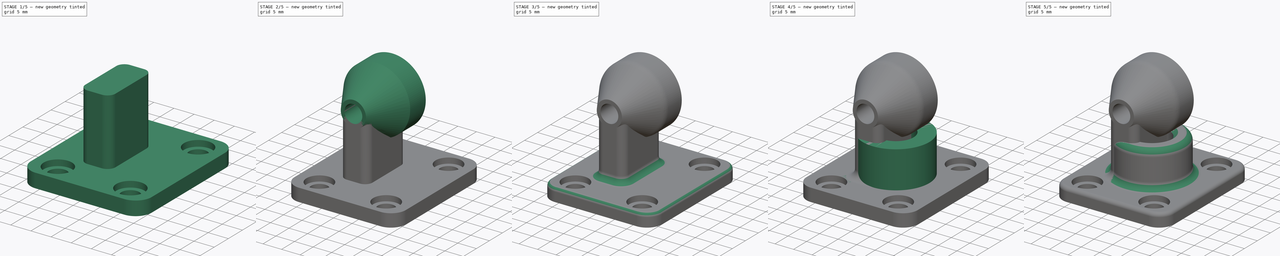
[diagram: build sequence overview — one tinted view per stage of 5, left to right]
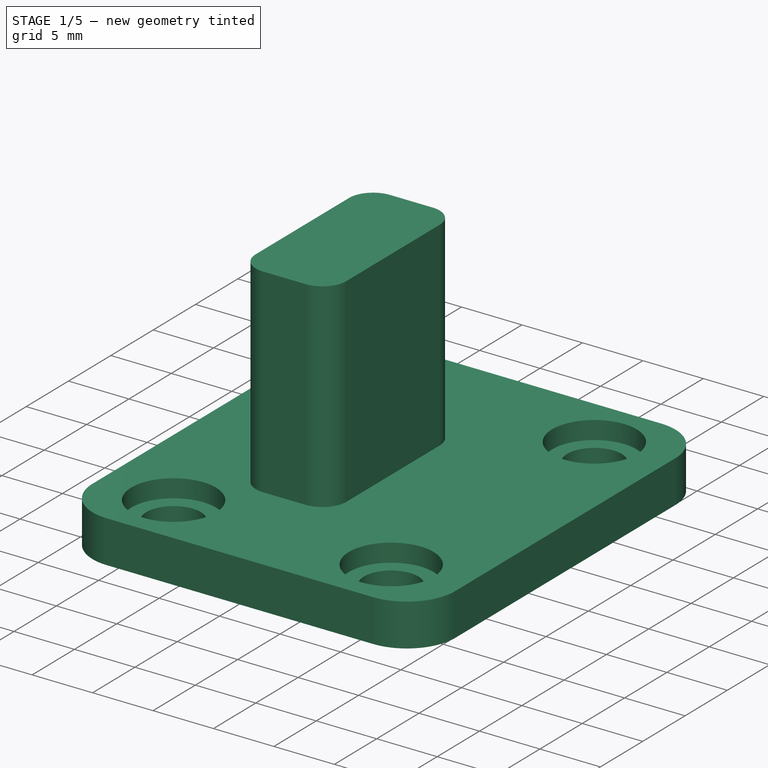
[diagram: stage 1 of 5 — iso view after this stage's code; geometry added in this stage tinted green]
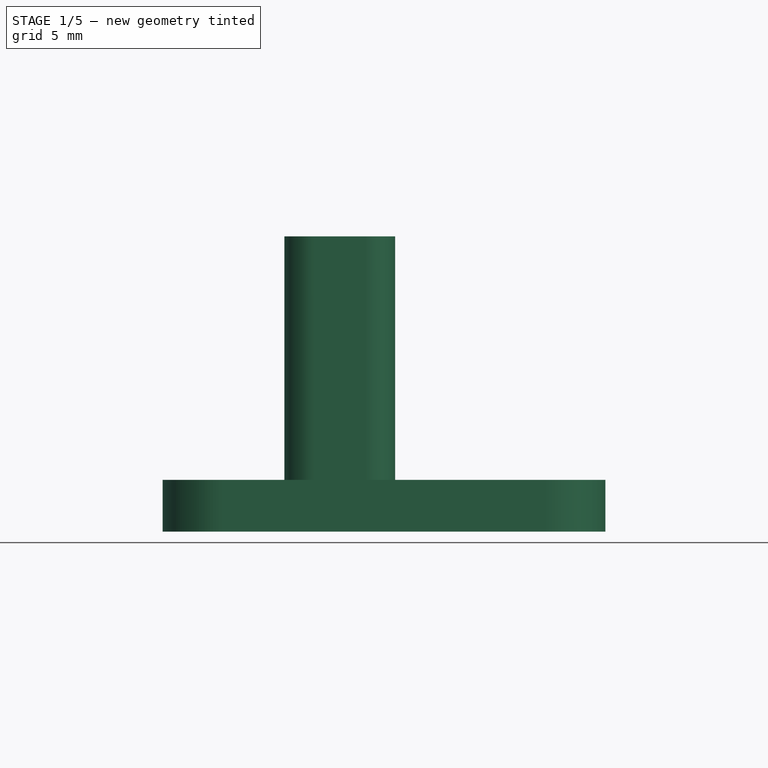
[diagram: stage 1 of 5 — front view after this stage's code; geometry added in this stage tinted green]
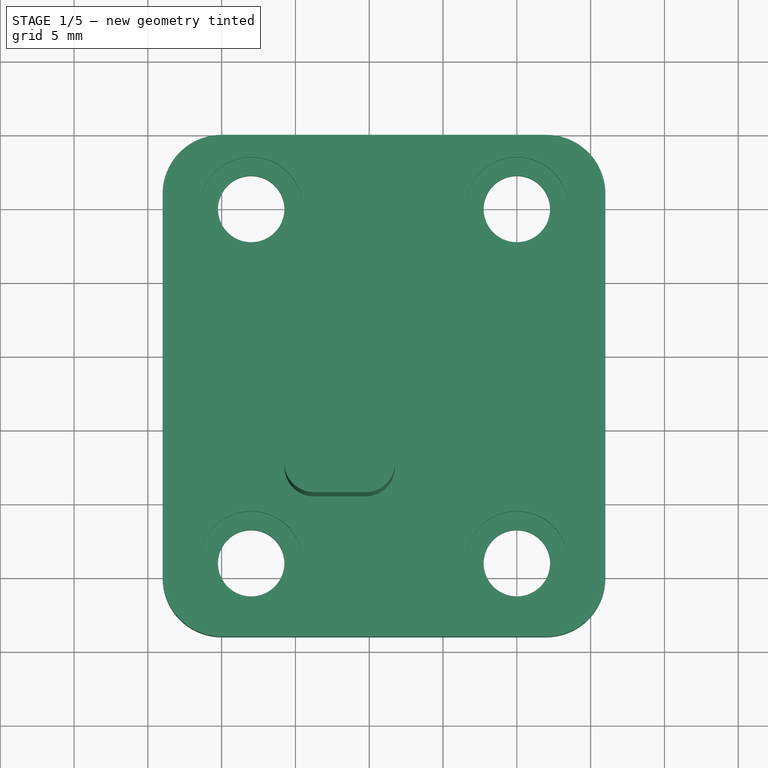
[diagram: stage 1 of 5 — top view after this stage's code; geometry added in this stage tinted green]
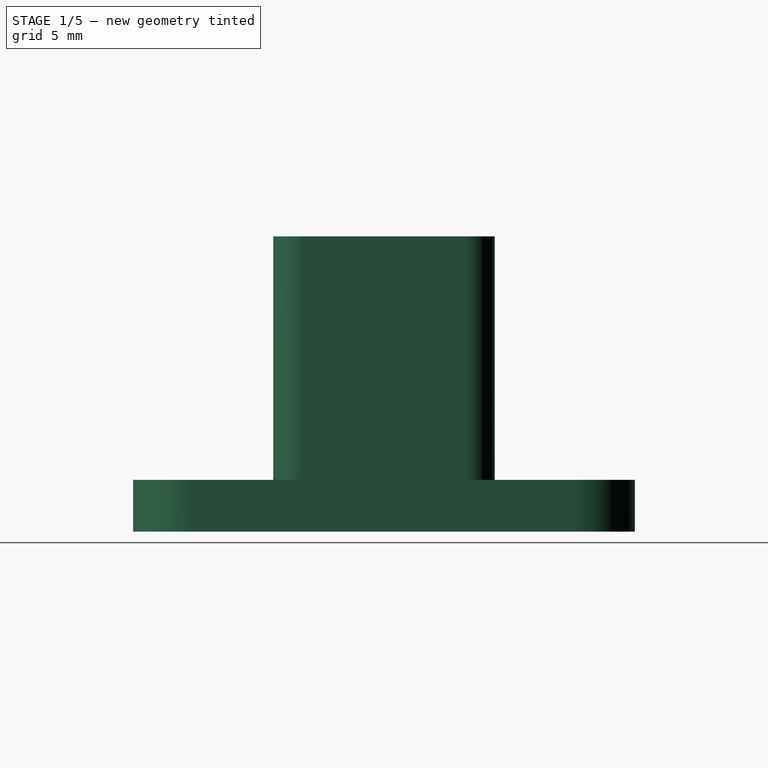
[diagram: stage 1 of 5 — right view after this stage's code; geometry added in this stage tinted green]
FCSTD DOCUMENT  (FreeCAD 0.17R13522 (Git))
Label: FilamentGuideSystem
License: All rights reserved
LicenseURL: http://en.wikipedia.org/wiki/All_rights_reserved
objects: Sketcher::SketchObject×15, PartDesign::Pocket×9, PartDesign::Fillet×5, PartDesign::Pad×4, PartDesign::Chamfer×2, PartDesign::Body×2, PartDesign::SubtractiveLoft×1, PartDesign::AdditiveLoft×1
note: 54 computed .brp shape members not serialized (recipe doc carries the construction recipe); baked Part::Feature solids carry a one-line shape summary decoded from their .brp

FEATURE [Sketcher::SketchObject] Sketch
  MapMode = 5
  Support = -> [XY_Plane]
  sketch-geometry (8):
    g0: LineSegment StartX=0 StartY=30 StartZ=0 EndX=22 EndY=30 EndZ=0
    g1: LineSegment StartX=26 StartY=26 StartZ=0 EndX=26 EndY=2e-12 EndZ=0
    g2: LineSegment StartX=22 StartY=-4 StartZ=0 EndX=1e-12 EndY=-4 EndZ=0
    g3: LineSegment StartX=-4 StartY=-1e-12 StartZ=0 EndX=-4 EndY=26 EndZ=0
    g4: ArcOfCircle CenterX=0 CenterY=26 CenterZ=0 NormalX=0 NormalY=0 NormalZ=1 AngleXU=0 Radius=4 StartAngle=1.5708 EndAngle=3.14159
    g5: ArcOfCircle CenterX=22 CenterY=26 CenterZ=0 NormalX=0 NormalY=0 NormalZ=1 AngleXU=0 Radius=4 StartAngle=0 EndAngle=1.5708
    g6: ArcOfCircle CenterX=22 CenterY=0 CenterZ=0 NormalX=0 NormalY=0 NormalZ=1 AngleXU=0 Radius=4 StartAngle=4.71239 EndAngle=6.28319
    g7: ArcOfCircle CenterX=0 CenterY=0 CenterZ=0 NormalX=0 NormalY=0 NormalZ=1 AngleXU=0 Radius=4 StartAngle=3.14159 EndAngle=4.71239
  constraints (21):
    c: Angle(g3,g0) = 1.5708
    c: Angle(g1,g2) = 1.5708
    c: Angle(g2,g3) = 1.5708
    c: Vertical(g3)
    c: Tangent(g0,g4) = 1.5708
    c: Tangent(g3,g4) = 1.5708
    c: Tangent(g0,g5) = 1.5708
    c: Tangent(g1,g5) = 1.5708
    c: Tangent(g1,g6) = 1.5708
    c: Tangent(g2,g6) = 1.5708
    c: Tangent(g2,g7) = 1.5708
    c: Tangent(g3,g7) = 1.5708
    c: Radius(g4) = 4
    c: Radius(g7) = 4
    c: Radius(g6) = 4
    c: Radius(g5) = 4
    c: Coincident(g7,g-1)
    c: DistanceY(g2,g0) = 34
    c: DistanceX(g3,g1) = 30
    c: Distance(g5,g4) = 22
    c: Distance(g5,g6) = 26
FEATURE [PartDesign::Pad] Pad  label="Base Plate"
  Length = 3.5
  Length2 = 100
  Profile = -> Sketch
  Type = 0
FEATURE [Sketcher::SketchObject] Sketch001
  ExternalGeometry = -> [Pad]
  MapMode = 5
  Placement = pos=(0,0,3.5) rot=(0,0,1;0rad)
  Support = -> [Pad]
  sketch-geometry (9):
    g0: Circle CenterX=2 CenterY=25 CenterZ=0 NormalX=0 NormalY=0 NormalZ=1 AngleXU=0 Radius=2.25
    g1: Circle CenterX=20 CenterY=25 CenterZ=0 NormalX=0 NormalY=0 NormalZ=1 AngleXU=0 Radius=2.25
    g2: Circle CenterX=20 CenterY=1 CenterZ=0 NormalX=0 NormalY=0 NormalZ=1 AngleXU=0 Radius=2.25
    g3: Circle CenterX=2 CenterY=1 CenterZ=0 NormalX=0 NormalY=0 NormalZ=1 AngleXU=0 Radius=2.25
    g4: LineSegment [constr] StartX=2 StartY=25 StartZ=0 EndX=20 EndY=25 EndZ=0
    g5: LineSegment [constr] StartX=20 StartY=1 StartZ=0 EndX=2 EndY=1 EndZ=0
    g6: LineSegment [constr] StartX=20 StartY=1 StartZ=0 EndX=26 EndY=1 EndZ=0
    g7: LineSegment [constr] StartX=2 StartY=1 StartZ=0 EndX=-4 EndY=1 EndZ=0
    g8: LineSegment [constr] StartX=20 StartY=25 StartZ=0 EndX=26 EndY=25 EndZ=0
  constraints (25):
    c: DistanceY(g1,g-3) = 5
    c: DistanceY(g0,g-3) = 5
    c: DistanceY(g-6,g3) = 5
    c: DistanceY(g-6,g2) = 5
    c: Radius(g1) = 2.25
    c: Radius(g0) = 2.25
    c: Radius(g2) = 2.25
    c: Radius(g3) = 2.25
    c: Coincident(g4,g0)
    c: Coincident(g4,g1)
    c: Coincident(g5,g2)
    c: Coincident(g5,g3)
    c: Equal(g5,g4)
    c: Coincident(g6,g2)
    c: PointOnObject(g6,g-5)
    c: Horizontal(g6)
    c: Coincident(g7,g3)
    c: PointOnObject(g7,g-4)
    c: Horizontal(g7)
    c: Coincident(g8,g1)
    c: PointOnObject(g8,g-5)
    c: Horizontal(g8)
    c: Equal(g8,g6)
    c: Equal(g6,g7)
    c: Distance(g5) = 18
FEATURE [PartDesign::Pocket] Pocket  label="Bolt Holes"
  BaseFeature = -> Pad
  Length = 5
  Length2 = 100
  Profile = -> Sketch001
  Type = 1
FEATURE [Sketcher::SketchObject] Sketch002
  ExternalGeometry = -> [Pocket]
  MapMode = 5
  Placement = pos=(0,0,3.5) rot=(0,0,1;0rad)
  Support = -> [Pocket]
  sketch-geometry (4):
    g0: Circle CenterX=2 CenterY=25 CenterZ=0 NormalX=0 NormalY=0 NormalZ=1 AngleXU=0 Radius=3.5
    g1: Circle CenterX=20 CenterY=25 CenterZ=0 NormalX=0 NormalY=0 NormalZ=1 AngleXU=0 Radius=3.5
    g2: Circle CenterX=20 CenterY=1 CenterZ=0 NormalX=0 NormalY=0 NormalZ=1 AngleXU=0 Radius=3.5
    g3: Circle CenterX=2 CenterY=1 CenterZ=0 NormalX=0 NormalY=0 NormalZ=1 AngleXU=0 Radius=3.5
  constraints (9):
    c: Coincident(g0,g-3)
    c: Coincident(g1,g-4)
    c: Coincident(g2,g-5)
    c: Coincident(g3,g-6)
    c: Radius(g0) = 3.5
    c: Radius(g1) = 3.5
    c: Radius(g2) = 3.5
    c: Radius(g3) = 3.5
    c: DistanceX(g3,g2) = 18
FEATURE [PartDesign::Pocket] Pocket001  label="Countersinks"
  BaseFeature = -> Pocket
  Length = 1.5
  Length2 = 100
  Profile = -> Sketch002
  Type = 0
FEATURE [Sketcher::SketchObject] Sketch003
  ExternalGeometry = -> [Pocket001]
  MapMode = 5
  Placement = pos=(0,0,3.5) rot=(0,0,1;0rad)
  Support = -> [Pocket001]
  sketch-geometry (11):
    g0: LineSegment StartX=6.25 StartY=20.5 StartZ=0 EndX=9.75 EndY=20.5 EndZ=0
    g1: LineSegment StartX=11.75 StartY=18.5 StartZ=0 EndX=11.75 EndY=7.5 EndZ=0
    g2: LineSegment StartX=9.75 StartY=5.5 StartZ=0 EndX=6.25 EndY=5.5 EndZ=0
    g3: LineSegment StartX=4.25 StartY=7.5 StartZ=0 EndX=4.25 EndY=18.5 EndZ=0
    g4: ArcOfCircle CenterX=9.75 CenterY=18.5 CenterZ=0 NormalX=0 NormalY=0 NormalZ=1 AngleXU=0 Radius=2 StartAngle=0 EndAngle=1.5708
    g5: ArcOfCircle CenterX=6.25 CenterY=18.5 CenterZ=0 NormalX=0 NormalY=0 NormalZ=1 AngleXU=0 Radius=2 StartAngle=1.5708 EndAngle=3.14159
    g6: ArcOfCircle CenterX=6.25 CenterY=7.5 CenterZ=0 NormalX=0 NormalY=0 NormalZ=1 AngleXU=0 Radius=2 StartAngle=3.14159 EndAngle=4.71239
    g7: ArcOfCircle CenterX=9.75 CenterY=7.5 CenterZ=0 NormalX=0 NormalY=0 NormalZ=1 AngleXU=0 Radius=2 StartAngle=4.71239 EndAngle=6.28319
    g8: LineSegment [constr] StartX=0 StartY=26 StartZ=0 EndX=6.25 EndY=18.5 EndZ=0
    g9: LineSegment [constr] StartX=6.25 StartY=7.5 StartZ=0 EndX=0 EndY=0 EndZ=0
    g10: LineSegment [constr] StartX=8 StartY=20.5 StartZ=0 EndX=8 EndY=5.5 EndZ=0
  constraints (28):
    c: Horizontal(g0)
    c: Horizontal(g2)
    c: Vertical(g1)
    c: Vertical(g3)
    c: Tangent(g0,g4) = 1.5708
    c: Tangent(g1,g4) = 1.5708
    c: Tangent(g0,g5) = 1.5708
    c: Tangent(g3,g5) = 1.5708
    c: Tangent(g2,g6) = 1.5708
    c: Tangent(g3,g6) = 1.5708
    c: Tangent(g1,g7) = 1.5708
    c: Tangent(g2,g7) = 1.5708
    c: DistanceY(g2,g0) = 15
    c: DistanceX(g3,g1) = 7.5
    c: Radius(g5) = 2
    c: Radius(g4) = 2
    c: Radius(g7) = 2
    c: Radius(g6) = 2
    c: Coincident(g8,g-5)
    c: Coincident(g8,g5)
    c: Coincident(g9,g6)
    c: Coincident(g9,g-1)
    c: Equal(g9,g8)
    c: PointOnObject(g10,g0)
    c: PointOnObject(g10,g2)
    c: Vertical(g10)
    c: Symmetric(g0,g0,g10)
    c: DistanceX(g-5,g10) = 12
FEATURE [PartDesign::Pad] Pad001  label="Strut"
  BaseFeature = -> Pocket001
  Length = 16.5
  Length2 = 100
  Profile = -> Sketch003
  Type = 0
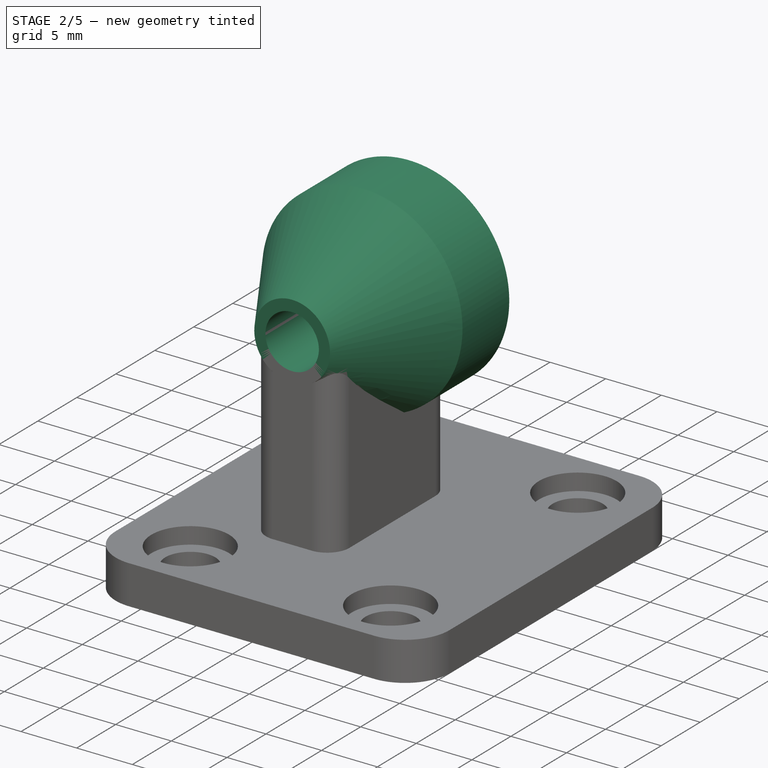
[diagram: stage 2 of 5 — iso view after this stage's code; geometry added in this stage tinted green]
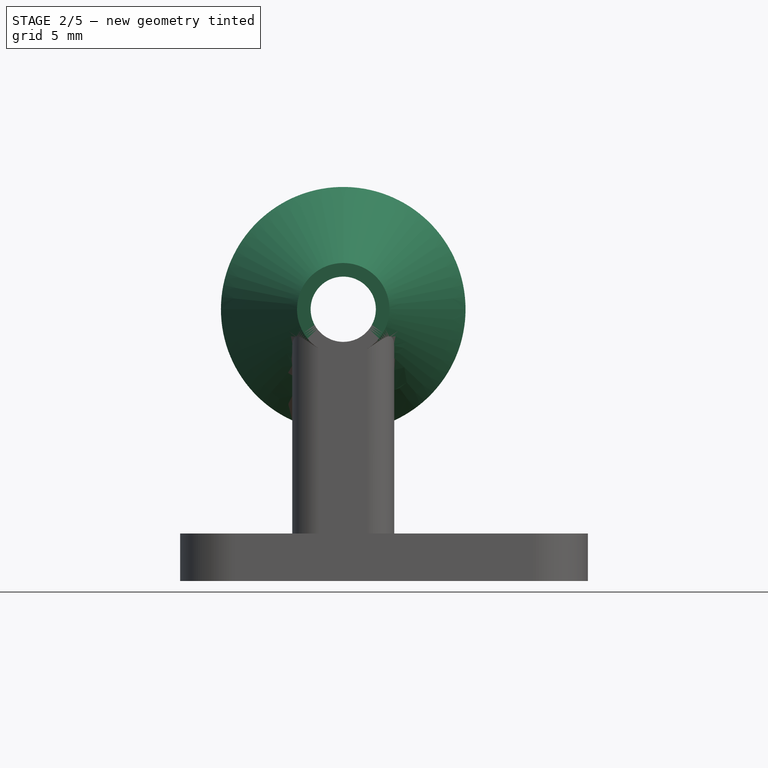
[diagram: stage 2 of 5 — front view after this stage's code; geometry added in this stage tinted green]
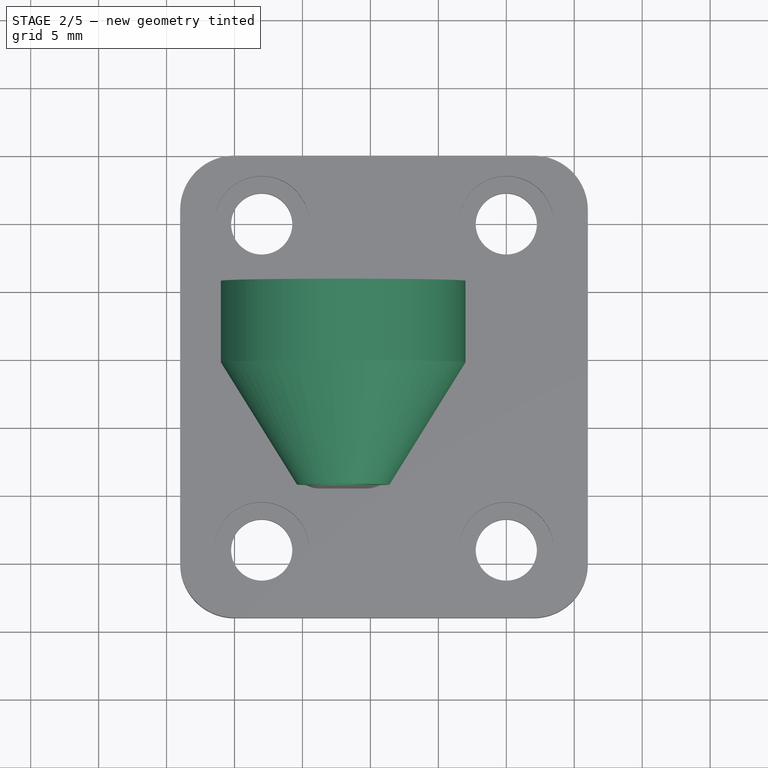
[diagram: stage 2 of 5 — top view after this stage's code; geometry added in this stage tinted green]
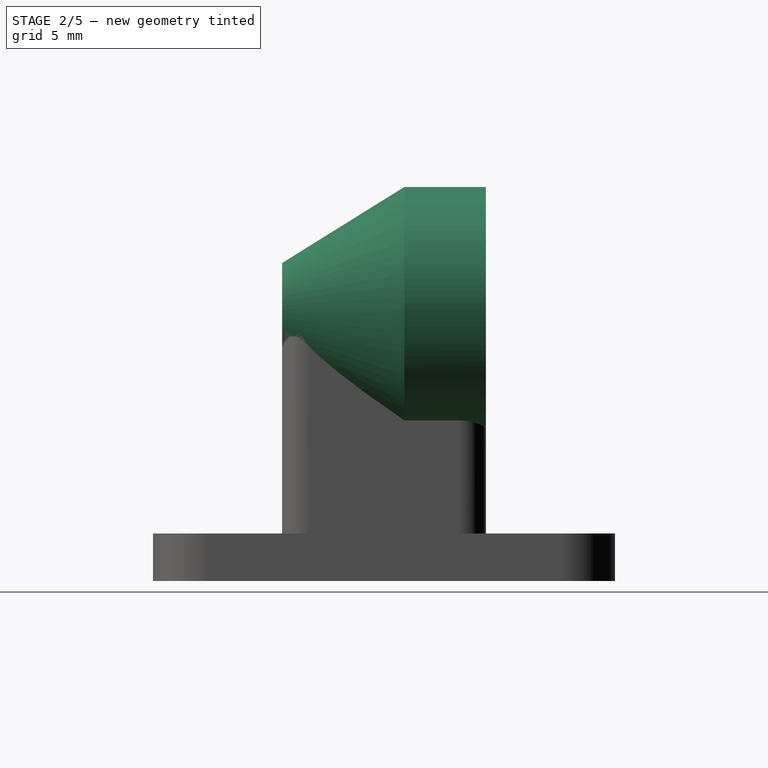
[diagram: stage 2 of 5 — right view after this stage's code; geometry added in this stage tinted green]
FEATURE [Sketcher::SketchObject] Sketch004
  ExternalGeometry = -> [Pad001]
  MapMode = 5
  Placement = pos=(0,20.5,0) rot=(0,0.707107,0.707107;3.14159rad)
  Support = -> [Pad001]
  sketch-geometry (2):
    g0: GeomPoint X=-8 Y=20 Z=0
    g1: Circle CenterX=-8 CenterY=20 CenterZ=0 NormalX=0 NormalY=0 NormalZ=1 AngleXU=0 Radius=9
  constraints (4):
    c: PointOnObject(g0,g-3)
    c: Symmetric(g-3,g-3,g0)
    c: Coincident(g1,g0)
    c: Radius(g1) = 9
FEATURE [PartDesign::Pocket] Pocket002
  BaseFeature = -> Pad001
  Length = 6
  Length2 = 100
  Profile = -> Sketch004
  Type = 0
FEATURE [Sketcher::SketchObject] Sketch005
  ExternalGeometry = -> [Pocket002]
  MapMode = 5
  Placement = pos=(0,14.5,0) rot=(0,0.707107,0.707107;3.14159rad)
  Support = -> [Pocket002]
  sketch-geometry (2):
    g0: GeomPoint X=-8 Y=20 Z=0
    g1: Circle CenterX=-8 CenterY=20 CenterZ=0 NormalX=0 NormalY=0 NormalZ=1 AngleXU=0 Radius=9
  constraints (4):
    c: PointOnObject(g0,g-3)
    c: Symmetric(g-3,g-3,g0)
    c: Coincident(g1,g0)
    c: Radius(g1) = 9
FEATURE [Sketcher::SketchObject] Sketch006
  ExternalGeometry = -> [Sketch005]
  MapMode = 5
  Placement = pos=(0,5.5,0) rot=(1,0,0;1.5708rad)
  Support = -> [Pocket002]
  sketch-geometry (1):
    g0: Circle CenterX=8 CenterY=20 CenterZ=0 NormalX=0 NormalY=0 NormalZ=1 AngleXU=0 Radius=3.4
  constraints (2):
    c: Coincident(g0,g-3)
    c: Radius(g0) = 3.4
FEATURE [PartDesign::SubtractiveLoft] SubtractiveLoft
  BaseFeature = -> Pocket002
  Closed = false
  Profile = -> Sketch005
  Ruled = false
  Sections = -> [Sketch006]
FEATURE [PartDesign::AdditiveLoft] AdditiveLoft
  BaseFeature = -> SubtractiveLoft
  Closed = false
  Profile = -> Sketch004
  Ruled = true
  Sections = -> [Sketch005,Sketch006]
FEATURE [Sketcher::SketchObject] Sketch007
  ExternalGeometry = -> [AdditiveLoft]
  MapMode = 5
  Placement = pos=(0,20.5,0) rot=(0,0.707107,0.707107;3.14159rad)
  Support = -> [AdditiveLoft]
  expr: Constraints[1] = 9.5 / 2
  sketch-geometry (1):
    g0: Circle CenterX=-8 CenterY=20 CenterZ=0 NormalX=0 NormalY=0 NormalZ=1 AngleXU=0 Radius=4.75
  constraints (2):
    c: Coincident(g0,g-3)
    c: Radius(g0) = 4.75
FEATURE [PartDesign::Pocket] Pocket003
  BaseFeature = -> AdditiveLoft
  Length = 6
  Length2 = 100
  Profile = -> Sketch007
  Type = 0
FEATURE [Sketcher::SketchObject] Sketch008
  ExternalGeometry = -> [Pocket003]
  MapMode = 5
  Placement = pos=(0,14.5,0) rot=(0,0.707107,0.707107;3.14159rad)
  Support = -> [Pocket003]
  sketch-geometry (1):
    g0: Circle CenterX=-8 CenterY=20 CenterZ=0 NormalX=0 NormalY=0 NormalZ=1 AngleXU=0 Radius=2.4
  constraints (2):
    c: Coincident(g0,g-3)
    c: Radius(g0) = 2.4
FEATURE [PartDesign::Pocket] Pocket004
  BaseFeature = -> Pocket003
  Length = 5
  Length2 = 100
  Profile = -> Sketch008
  Type = 1
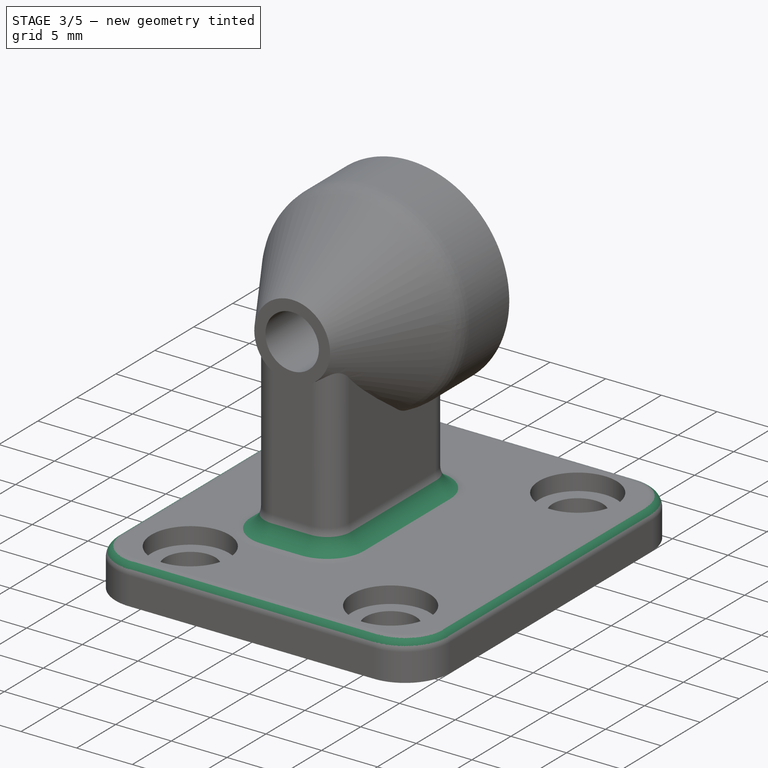
[diagram: stage 3 of 5 — iso view after this stage's code; geometry added in this stage tinted green]
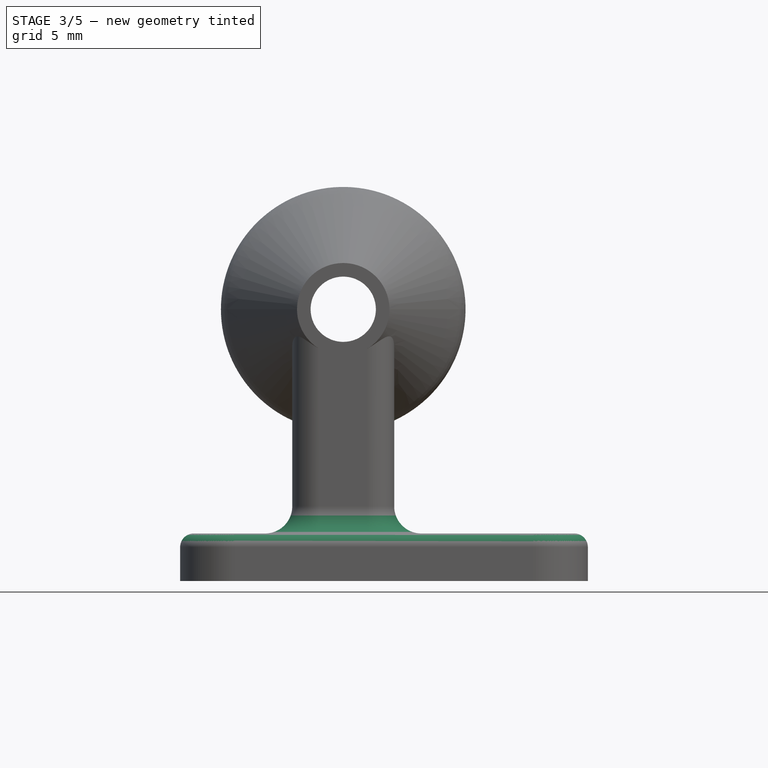
[diagram: stage 3 of 5 — front view after this stage's code; geometry added in this stage tinted green]
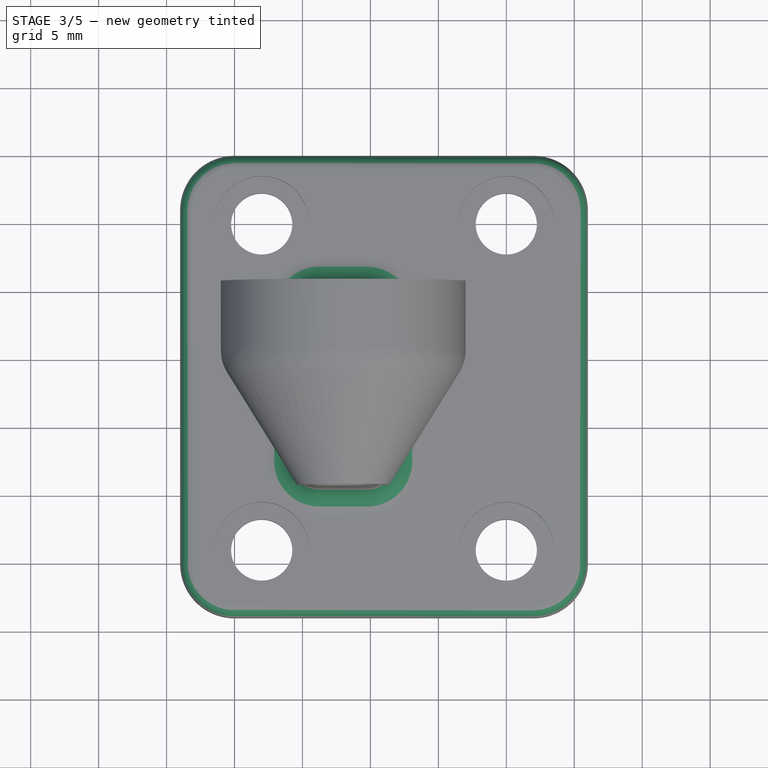
[diagram: stage 3 of 5 — top view after this stage's code; geometry added in this stage tinted green]
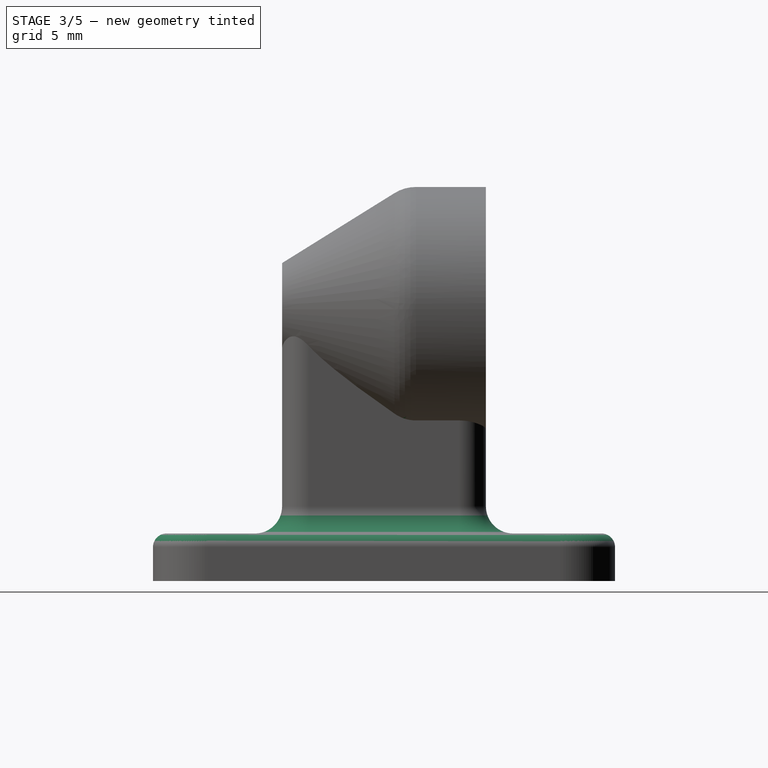
[diagram: stage 3 of 5 — right view after this stage's code; geometry added in this stage tinted green]
FEATURE [PartDesign::Fillet] Fillet
  Base = -> Pocket004 [Edge89,Edge87,Edge80]
  BaseFeature = -> Pocket004
  Radius = 3
FEATURE [PartDesign::Chamfer] Chamfer
  Base = -> Fillet [Edge42]
  BaseFeature = -> Fillet
  Size = 1
FEATURE [PartDesign::Body] Body001  label="Drybox End"
  Group = -> [Sketch017,Pad002,Sketch016,Pocket006,Sketch015,Pocket007,Sketch018,Pad003,Sketch019,Pocket008,Sketch020,Pocket009,Fillet003,Chamfer001,Fillet004]
  Origin = -> Origin001
  Placement = pos=(44,0,0) rot=(0,0,1;0rad)
  Tip = -> Fillet004
FEATURE [PartDesign::Fillet] Fillet005
  Base = -> Chamfer [Edge28,Edge31,Edge17,Edge51,Edge38,Edge36,Edge49,Edge50]
  BaseFeature = -> Chamfer
  Radius = 2
FEATURE [PartDesign::Fillet] Fillet006
  Base = -> Fillet005 [Edge33,Edge35,Edge37,Edge34,Edge36,Edge38,Edge40,Edge39]
  BaseFeature = -> Fillet005
  Radius = 1
FEATURE [PartDesign::Body] Body  label="Printer End"
  Group = -> [Sketch,Pad,Sketch001,Pocket,Sketch002,Pocket001,Sketch003,Pad001,Sketch004,Pocket002,Sketch005,Sketch006,SubtractiveLoft,AdditiveLoft,Sketch007,Pocket003,Sketch008,Pocket004,Fillet,Chamfer,Fillet005,Fillet006]
  Origin = -> Origin
  Tip = -> Fillet006
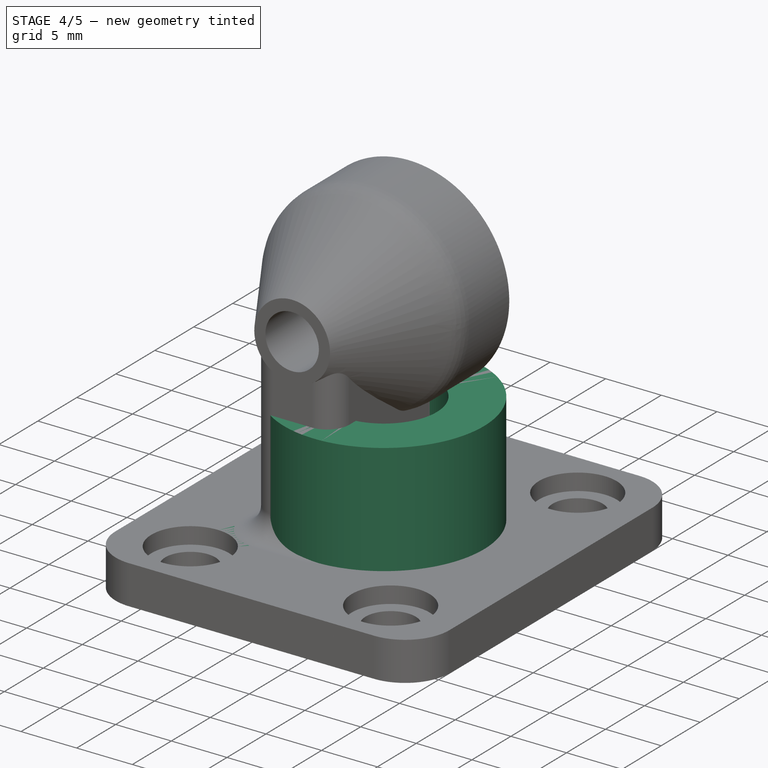
[diagram: stage 4 of 5 — iso view after this stage's code; geometry added in this stage tinted green]
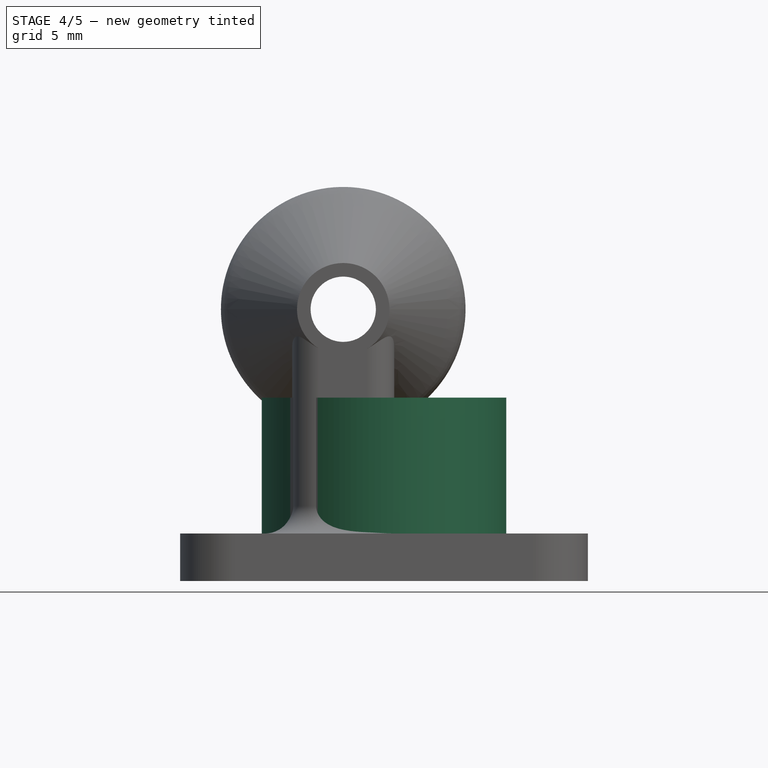
[diagram: stage 4 of 5 — front view after this stage's code; geometry added in this stage tinted green]
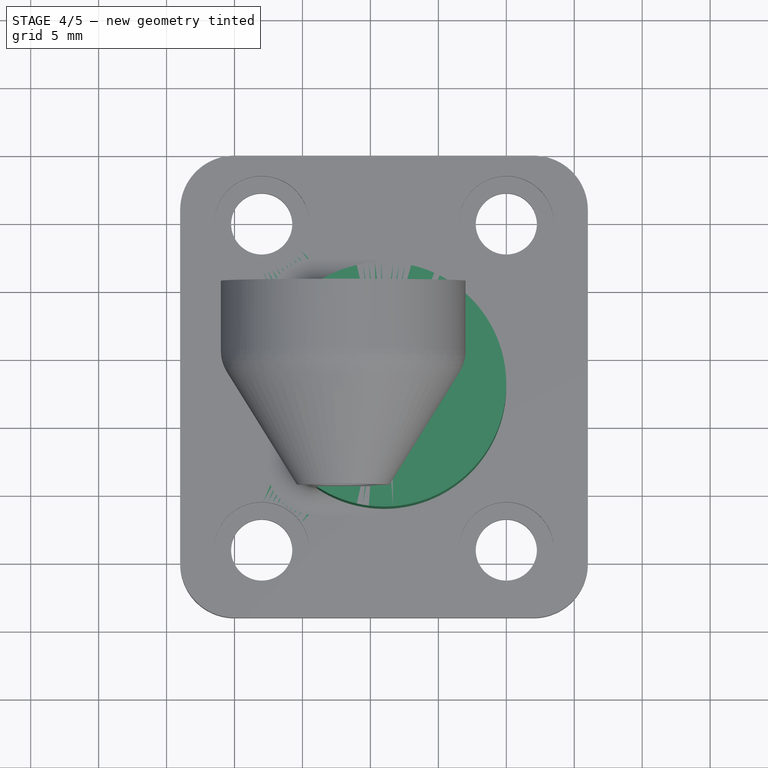
[diagram: stage 4 of 5 — top view after this stage's code; geometry added in this stage tinted green]
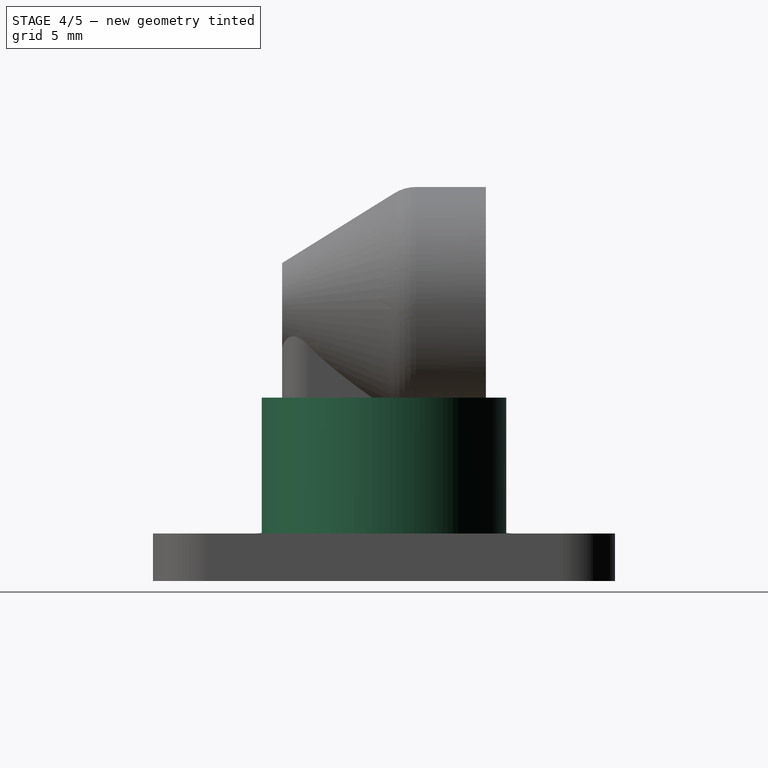
[diagram: stage 4 of 5 — right view after this stage's code; geometry added in this stage tinted green]
FEATURE [Sketcher::SketchObject] Sketch017
  MapMode = 5
  Support = -> [XY_Plane001]
  sketch-geometry (8):
    g0: LineSegment StartX=0 StartY=30 StartZ=0 EndX=22 EndY=30 EndZ=0
    g1: LineSegment StartX=26 StartY=26 StartZ=0 EndX=26 EndY=0 EndZ=0
    g2: LineSegment StartX=22 StartY=-4 StartZ=0 EndX=1e-12 EndY=-4 EndZ=0
    g3: LineSegment StartX=-4 StartY=-1e-12 StartZ=0 EndX=-4 EndY=26 EndZ=0
    g4: ArcOfCircle CenterX=0 CenterY=26 CenterZ=0 NormalX=0 NormalY=0 NormalZ=1 AngleXU=0 Radius=4 StartAngle=1.5708 EndAngle=3.14159
    g5: ArcOfCircle CenterX=22 CenterY=26 CenterZ=0 NormalX=0 NormalY=0 NormalZ=1 AngleXU=0 Radius=4 StartAngle=0 EndAngle=1.5708
    g6: ArcOfCircle CenterX=22 CenterY=0 CenterZ=0 NormalX=0 NormalY=0 NormalZ=1 AngleXU=0 Radius=4 StartAngle=4.71239 EndAngle=6.28319
    g7: ArcOfCircle CenterX=0 CenterY=0 CenterZ=0 NormalX=0 NormalY=0 NormalZ=1 AngleXU=0 Radius=4 StartAngle=3.14159 EndAngle=4.71239
  constraints (19):
    c: Angle(g3,g0) = 1.5708
    c: Angle(g1,g2) = 1.5708
    c: Angle(g2,g3) = 1.5708
    c: Vertical(g3)
    c: Tangent(g0,g4) = 1.5708
    c: Tangent(g3,g4) = 1.5708
    c: Tangent(g0,g5) = 1.5708
    c: Tangent(g1,g5) = 1.5708
    c: Tangent(g1,g6) = 1.5708
    c: Tangent(g2,g6) = 1.5708
    c: Tangent(g2,g7) = 1.5708
    c: Tangent(g3,g7) = 1.5708
    c: Radius(g4) = 4
    c: Radius(g7) = 4
    c: Radius(g6) = 4
    c: Radius(g5) = 4
    c: Coincident(g7,g-1)
    c: DistanceY(g2,g0) = 34
    c: DistanceX(g3,g1) = 30
FEATURE [PartDesign::Pad] Pad002  label="Base Plate001"
  Length = 3.5
  Length2 = 100
  Profile = -> Sketch017
  Type = 0
FEATURE [Sketcher::SketchObject] Sketch016
  ExternalGeometry = -> [Pad002]
  MapMode = 5
  Placement = pos=(0,0,3.5) rot=(0,0,1;0rad)
  Support = -> [Pad002]
  sketch-geometry (7):
    g0: Circle CenterX=2 CenterY=25 CenterZ=0 NormalX=0 NormalY=0 NormalZ=1 AngleXU=0 Radius=2.25
    g1: Circle CenterX=20 CenterY=25 CenterZ=0 NormalX=0 NormalY=0 NormalZ=1 AngleXU=0 Radius=2.25
    g2: Circle CenterX=20 CenterY=1 CenterZ=0 NormalX=0 NormalY=0 NormalZ=1 AngleXU=0 Radius=2.25
    g3: Circle CenterX=2 CenterY=1 CenterZ=0 NormalX=0 NormalY=0 NormalZ=1 AngleXU=0 Radius=2.25
    g4: LineSegment [constr] StartX=20 StartY=25 StartZ=0 EndX=26 EndY=25 EndZ=0
    g5: LineSegment [constr] StartX=20 StartY=1 StartZ=0 EndX=26 EndY=1 EndZ=0
    g6: LineSegment [constr] StartX=2 StartY=1 StartZ=0 EndX=-4 EndY=1 EndZ=0
  constraints (21):
    c: DistanceY(g1,g-3) = 5
    c: DistanceY(g0,g-3) = 5
    c: DistanceY(g-6,g3) = 5
    c: DistanceY(g-6,g2) = 5
    c: Radius(g1) = 2.25
    c: Radius(g0) = 2.25
    c: Radius(g2) = 2.25
    c: Radius(g3) = 2.25
    c: DistanceX(g0,g1) = 18
    c: DistanceX(g3,g2) = 18
    c: Coincident(g4,g1)
    c: PointOnObject(g4,g-5)
    c: Horizontal(g4)
    c: Coincident(g5,g2)
    c: PointOnObject(g5,g-5)
    c: Horizontal(g5)
    c: Coincident(g6,g3)
    c: PointOnObject(g6,g-4)
    c: Horizontal(g6)
    c: Equal(g5,g6)
    c: Equal(g5,g4)
FEATURE [PartDesign::Pocket] Pocket006  label="Bolt Holes001"
  BaseFeature = -> Pad002
  Length = 5
  Length2 = 100
  Profile = -> Sketch016
  Type = 1
FEATURE [Sketcher::SketchObject] Sketch015
  ExternalGeometry = -> [Pocket006]
  MapMode = 5
  Placement = pos=(0,0,3.5) rot=(0,0,1;0rad)
  Support = -> [Pocket006]
  sketch-geometry (4):
    g0: Circle CenterX=2 CenterY=25 CenterZ=0 NormalX=0 NormalY=0 NormalZ=1 AngleXU=0 Radius=3.5
    g1: Circle CenterX=20 CenterY=25 CenterZ=0 NormalX=0 NormalY=0 NormalZ=1 AngleXU=0 Radius=3.5
    g2: Circle CenterX=20 CenterY=1 CenterZ=0 NormalX=0 NormalY=0 NormalZ=1 AngleXU=0 Radius=3.5
    g3: Circle CenterX=2 CenterY=1 CenterZ=0 NormalX=0 NormalY=0 NormalZ=1 AngleXU=0 Radius=3.5
  constraints (8):
    c: Coincident(g0,g-3)
    c: Coincident(g1,g-4)
    c: Coincident(g2,g-5)
    c: Coincident(g3,g-6)
    c: Radius(g0) = 3.5
    c: Radius(g1) = 3.5
    c: Radius(g2) = 3.5
    c: Radius(g3) = 3.5
FEATURE [PartDesign::Pocket] Pocket007  label="Countersinks001"
  BaseFeature = -> Pocket006
  Length = 1.5
  Length2 = 100
  Profile = -> Sketch015
  Type = 0
FEATURE [Sketcher::SketchObject] Sketch018
  ExternalGeometry = -> [Pocket007]
  MapMode = 5
  Placement = pos=(0,0,3.5) rot=(0,0,1;0rad)
  Support = -> [Pocket007]
  sketch-geometry (3):
    g0: LineSegment [constr] StartX=2 StartY=1 StartZ=0 EndX=20 EndY=25 EndZ=0
    g1: GeomPoint X=11 Y=13 Z=0
    g2: Circle CenterX=11 CenterY=13 CenterZ=0 NormalX=0 NormalY=0 NormalZ=1 AngleXU=0 Radius=9
  constraints (6):
    c: Coincident(g0,g-6)
    c: Coincident(g0,g-4)
    c: PointOnObject(g1,g0)
    c: Symmetric(g0,g0,g1)
    c: Coincident(g2,g1)
    c: Radius(g2) = 9
FEATURE [PartDesign::Pad] Pad003
  BaseFeature = -> Pocket007
  Length = 10
  Length2 = 100
  Profile = -> Sketch018
  Type = 0
FEATURE [Sketcher::SketchObject] Sketch019
  ExternalGeometry = -> [Pad003]
  MapMode = 5
  Placement = pos=(0,0,13.5) rot=(0,0,1;0rad)
  Support = -> [Pad003]
  sketch-geometry (1):
    g0: Circle CenterX=11 CenterY=13 CenterZ=0 NormalX=0 NormalY=0 NormalZ=1 AngleXU=0 Radius=4.75
  constraints (2):
    c: Coincident(g0,g-3)
    c: Radius(g0) = 4.75
FEATURE [PartDesign::Pocket] Pocket008
  BaseFeature = -> Pad003
  Length = 6
  Length2 = 100
  Profile = -> Sketch019
  Type = 0
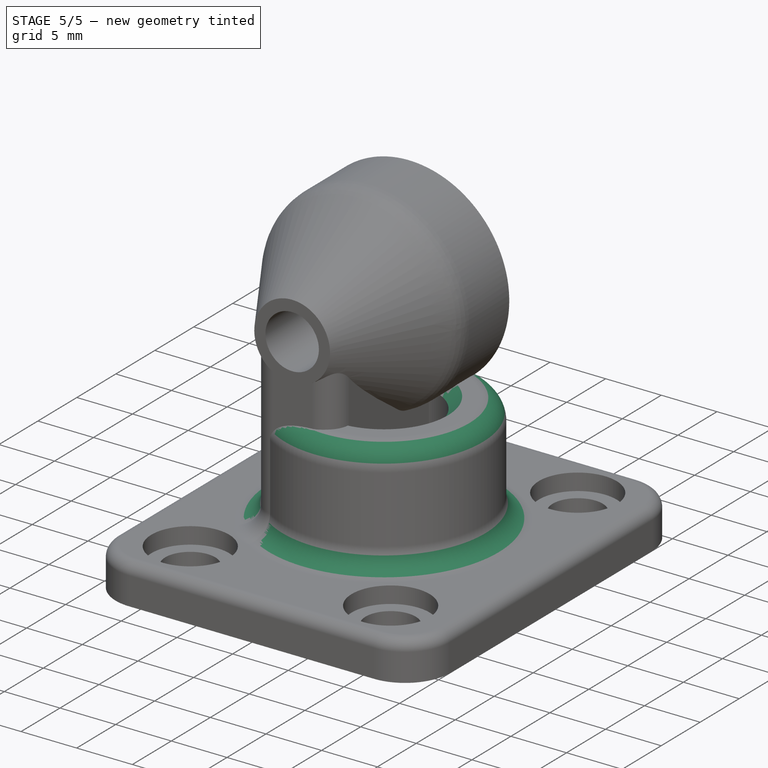
[diagram: stage 5 of 5 — iso view after this stage's code; geometry added in this stage tinted green]
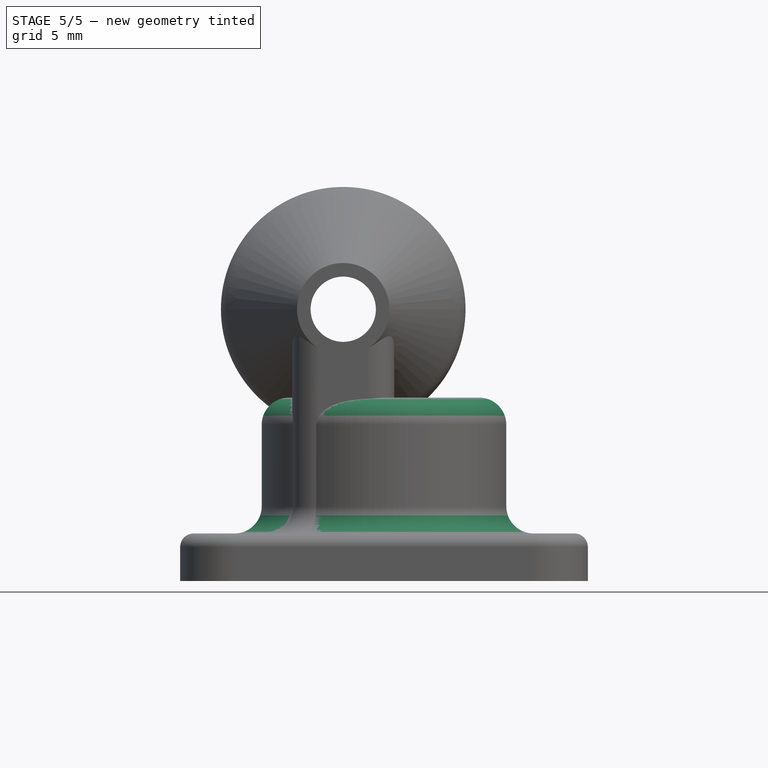
[diagram: stage 5 of 5 — front view after this stage's code; geometry added in this stage tinted green]
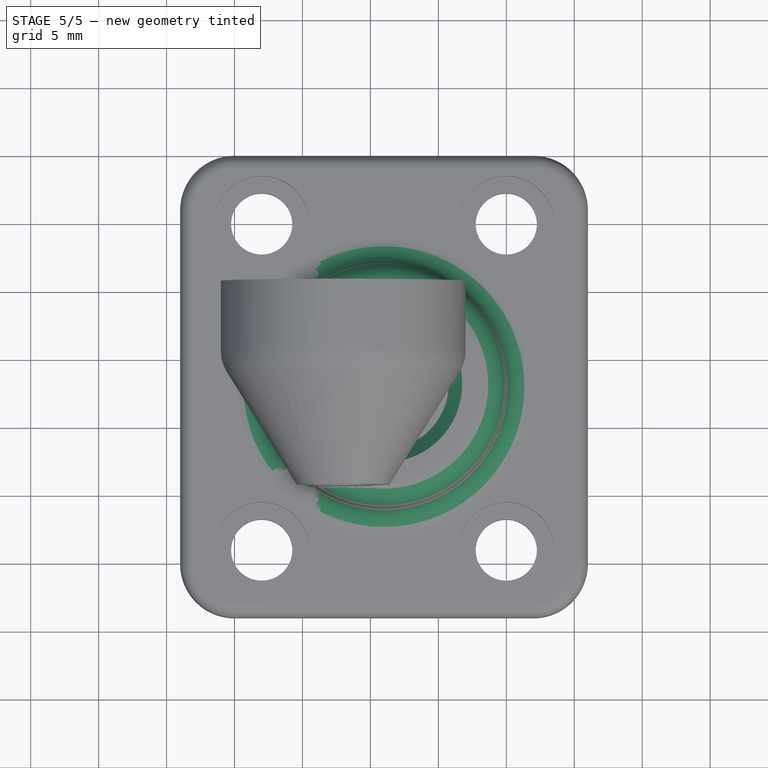
[diagram: stage 5 of 5 — top view after this stage's code; geometry added in this stage tinted green]
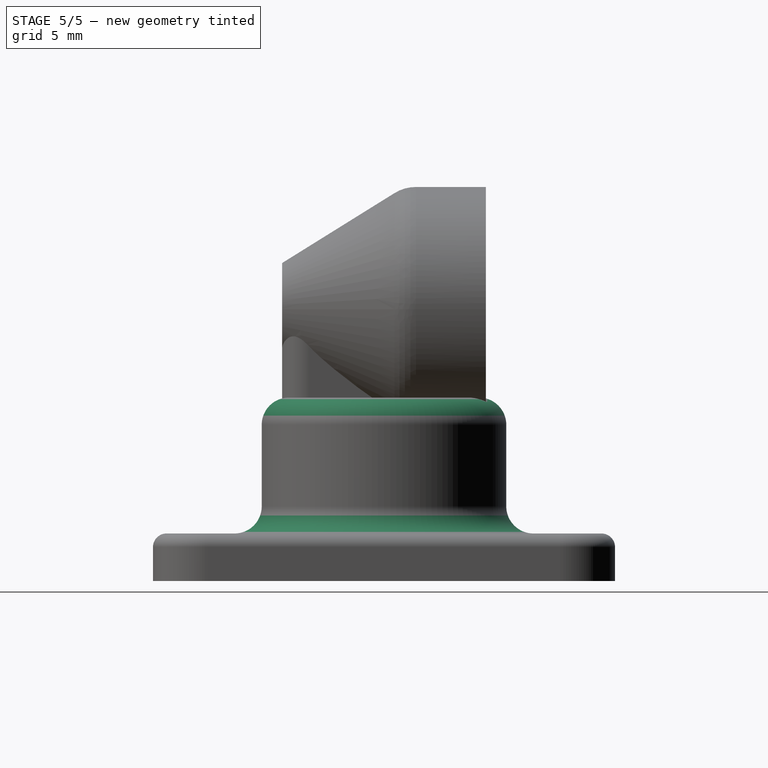
[diagram: stage 5 of 5 — right view after this stage's code; geometry added in this stage tinted green]
FEATURE [Sketcher::SketchObject] Sketch020
  ExternalGeometry = -> [Pocket008]
  MapMode = 5
  Placement = pos=(0,0,7.5) rot=(0,0,1;0rad)
  Support = -> [Pocket008]
  sketch-geometry (1):
    g0: Circle CenterX=11 CenterY=13 CenterZ=0 NormalX=0 NormalY=0 NormalZ=1 AngleXU=0 Radius=2.4
  constraints (2):
    c: Coincident(g0,g-3)
    c: Radius(g0) = 2.4
FEATURE [PartDesign::Pocket] Pocket009
  BaseFeature = -> Pocket008
  Length = 5
  Length2 = 100
  Profile = -> Sketch020
  Type = 1
FEATURE [PartDesign::Fillet] Fillet003
  Base = -> Pocket009 [Edge27,Edge48]
  BaseFeature = -> Pocket009
  Radius = 2
FEATURE [PartDesign::Chamfer] Chamfer001
  Base = -> Fillet003 [Edge59]
  BaseFeature = -> Fillet003
  Size = 1
FEATURE [PartDesign::Fillet] Fillet004
  Base = -> Chamfer001 [Edge16,Edge17,Edge19,Edge21,Edge23,Edge22,Edge20,Edge18]
  BaseFeature = -> Chamfer001
  Radius = 1
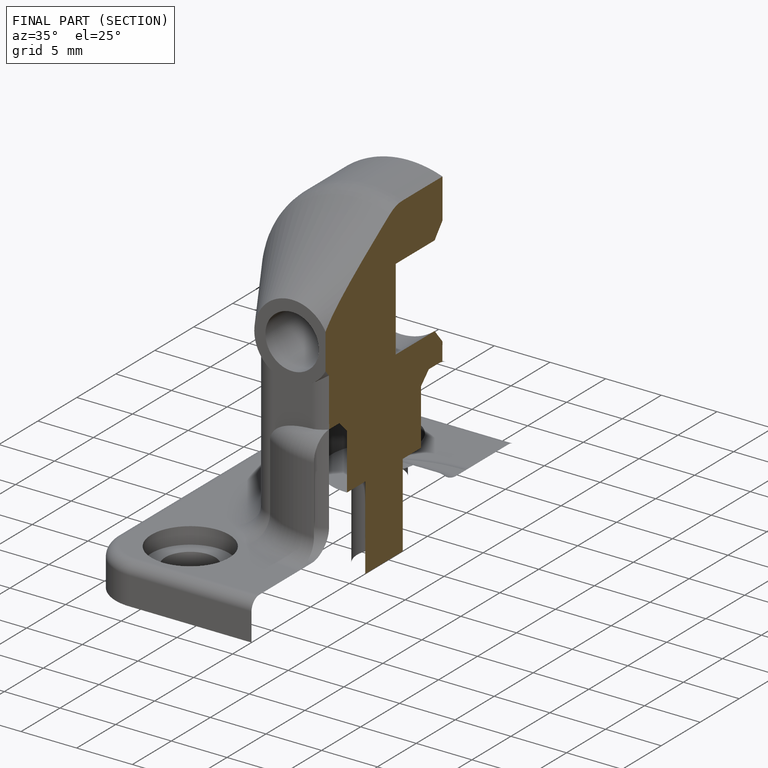
[diagram: finished part — half-section view (interior)]
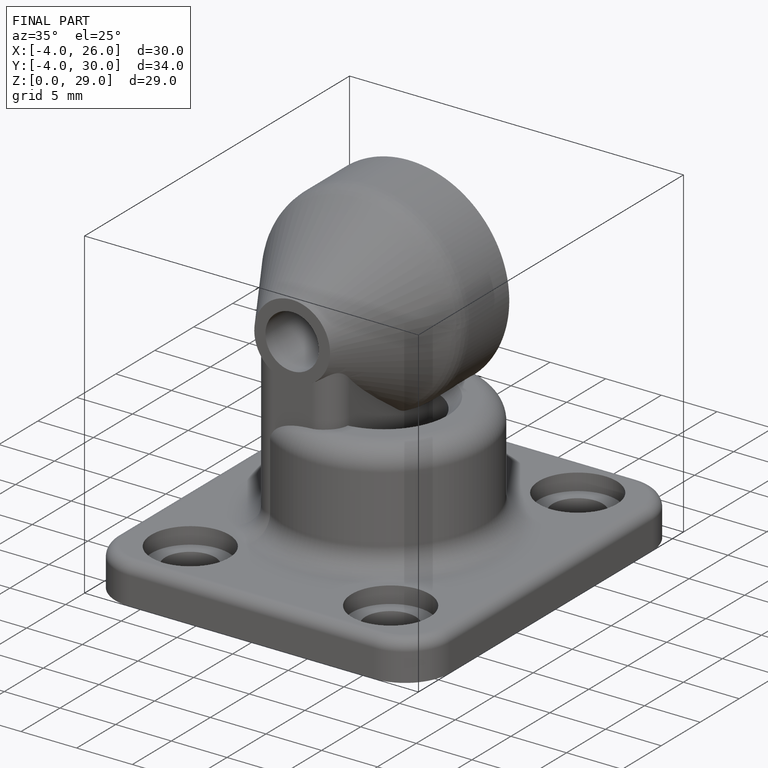
[diagram: finished part — iso view with bounding-box wireframe]
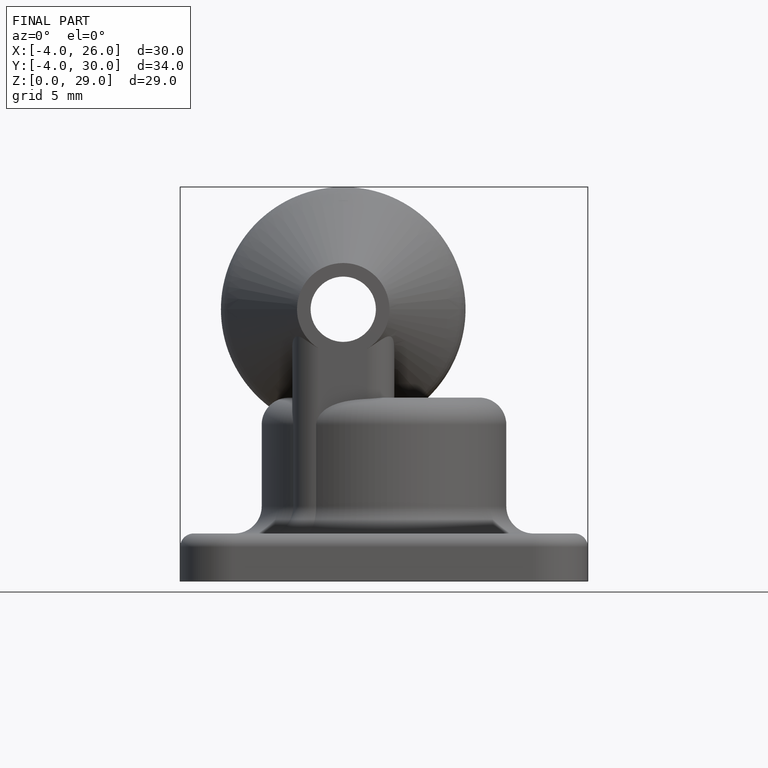
[diagram: finished part — front view with bounding-box wireframe]
